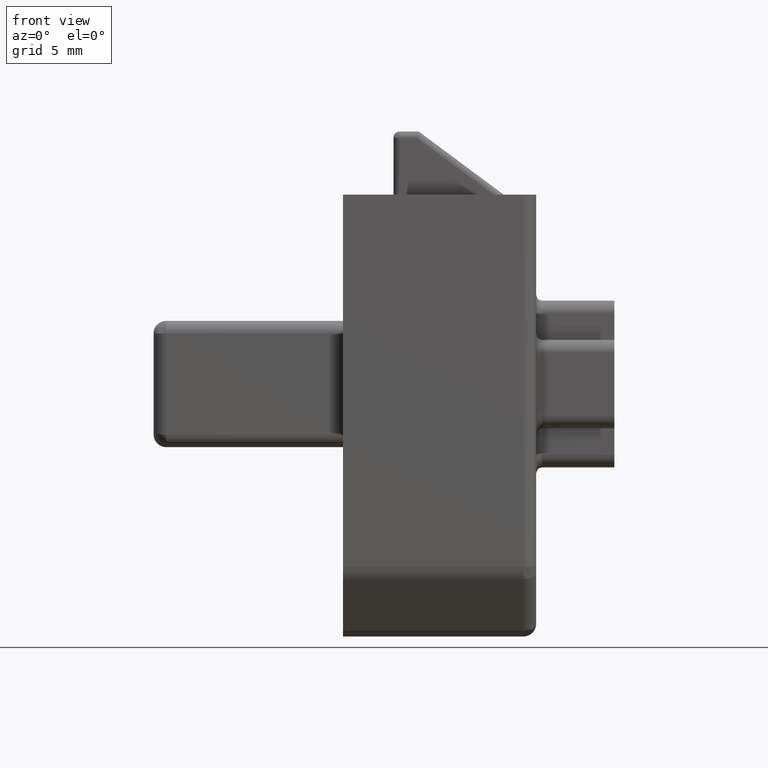
[diagram: clean part render]
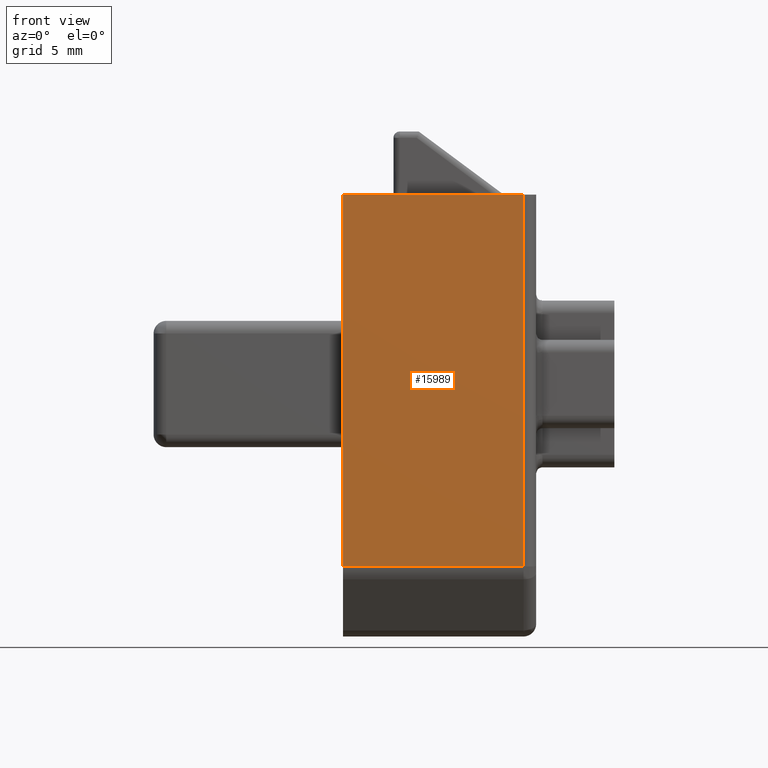
[diagram: same view with one face highlighted and labeled with its STEP entity id]
A machine part, front view. The second image highlights one B-rep face of the part: STEP entity #15989.
In plain terms, the highlighted face is a freeform B-spline surface patch.
Its self-contained STEP definition (entity closure, byte-faithful):
#15362=CARTESIAN_POINT('',(14.299999000000000,-10.300003000000119,-14.446030999999801));
#15363=VERTEX_POINT('',#15362);
#15421=CARTESIAN_POINT('',(14.299999000000000,-10.300003000000119,15.0));
#15422=VERTEX_POINT('',#15421);
#15438=CARTESIAN_POINT('',(14.299999000000000,-10.300003000000119,-14.446030999999801));
#15439=CARTESIAN_POINT('',(14.299999000000000,-10.300003000000119,15.0));
#15440=QUASI_UNIFORM_CURVE('',1,(#15438,#15439),.UNSPECIFIED.,.F.,.U.);
#15441=EDGE_CURVE('',#15363,#15422,#15440,.T.);
#15945=CARTESIAN_POINT('',(0.0,-10.300003000000119,-14.446030999999801));
#15946=VERTEX_POINT('',#15945);
#15947=CARTESIAN_POINT('',(14.299999000000000,-10.300003000000119,-14.446030999999801));
#15948=CARTESIAN_POINT('',(0.0,-10.300003000000119,-14.446030999999801));
#15949=QUASI_UNIFORM_CURVE('',1,(#15947,#15948),.UNSPECIFIED.,.F.,.U.);
#15950=EDGE_CURVE('',#15363,#15946,#15949,.T.);
#15968=CARTESIAN_POINT('',(-0.714284922333827,-10.300003000000119,-15.916859914959399));
#15969=CARTESIAN_POINT('',(-0.714284922333827,-10.300003000000119,16.470829968031730));
#15970=CARTESIAN_POINT('',(15.014284305889690,-10.300003000000119,-15.916859914959399));
#15971=CARTESIAN_POINT('',(15.014284305889690,-10.300003000000119,16.470829968031730));
#15972=B_SPLINE_SURFACE_WITH_KNOTS('',1,1,((#15968,#15970),(#15969,#15971)),.UNSPECIFIED.,.F.,.F.,.U.,(2,2),(2,2),(0.0,32.387689882991133),(0.0,15.728569228223520),.UNSPECIFIED.);
#15973=ORIENTED_EDGE('',*,*,#15950,.F.);
#15974=ORIENTED_EDGE('',*,*,#15441,.T.);
#15975=CARTESIAN_POINT('',(0.0,-10.300003000000119,15.0));
#15976=VERTEX_POINT('',#15975);
#15977=CARTESIAN_POINT('',(14.299999000000000,-10.300003000000119,15.0));
#15978=CARTESIAN_POINT('',(0.0,-10.300003000000119,15.0));
#15979=QUASI_UNIFORM_CURVE('',1,(#15977,#15978),.UNSPECIFIED.,.F.,.U.);
#15980=EDGE_CURVE('',#15422,#15976,#15979,.T.);
#15981=ORIENTED_EDGE('',*,*,#15980,.T.);
#15982=CARTESIAN_POINT('',(0.0,-10.300003000000119,15.0));
#15983=CARTESIAN_POINT('',(0.0,-10.300003000000119,-14.446030999999801));
#15984=QUASI_UNIFORM_CURVE('',1,(#15982,#15983),.UNSPECIFIED.,.F.,.U.);
#15985=EDGE_CURVE('',#15976,#15946,#15984,.T.);
#15986=ORIENTED_EDGE('',*,*,#15985,.T.);
#15987=EDGE_LOOP('',(#15973,#15974,#15981,#15986));
#15988=FACE_OUTER_BOUND('',#15987,.T.);
#15989=ADVANCED_FACE('',(#15988),#15972,.F.);